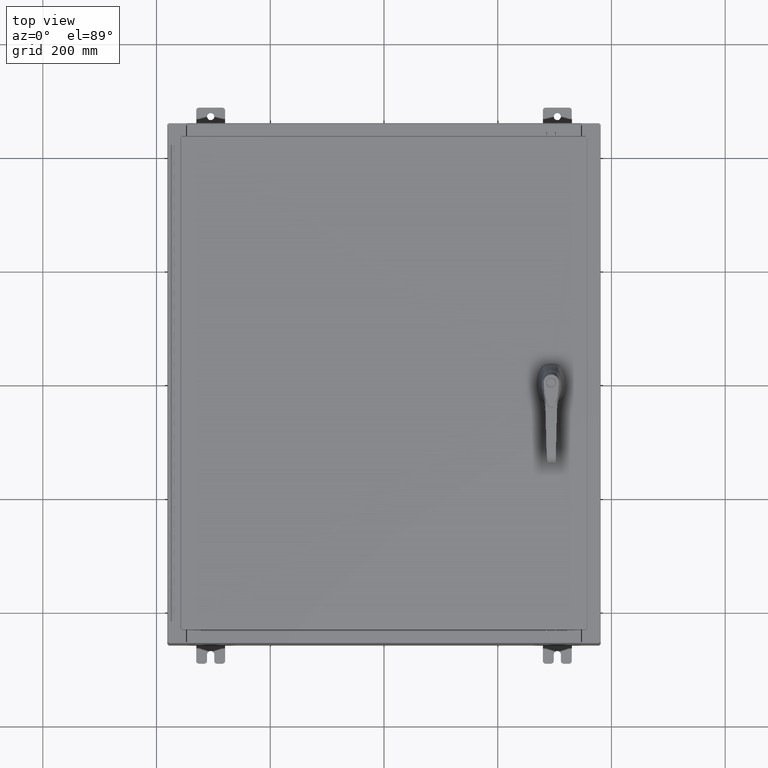
[diagram: clean part render]
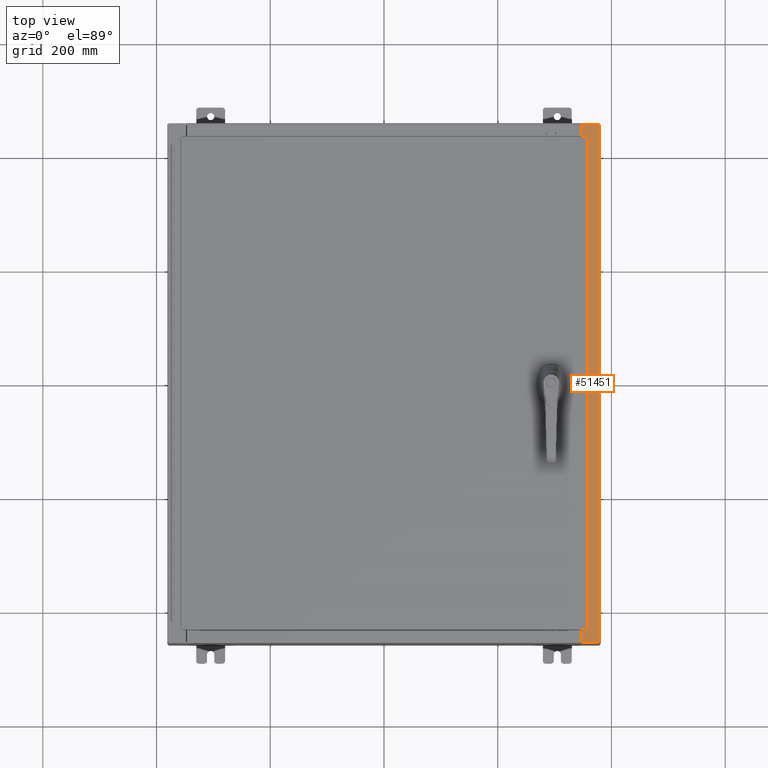
[diagram: same view with one face highlighted and labeled with its STEP entity id]
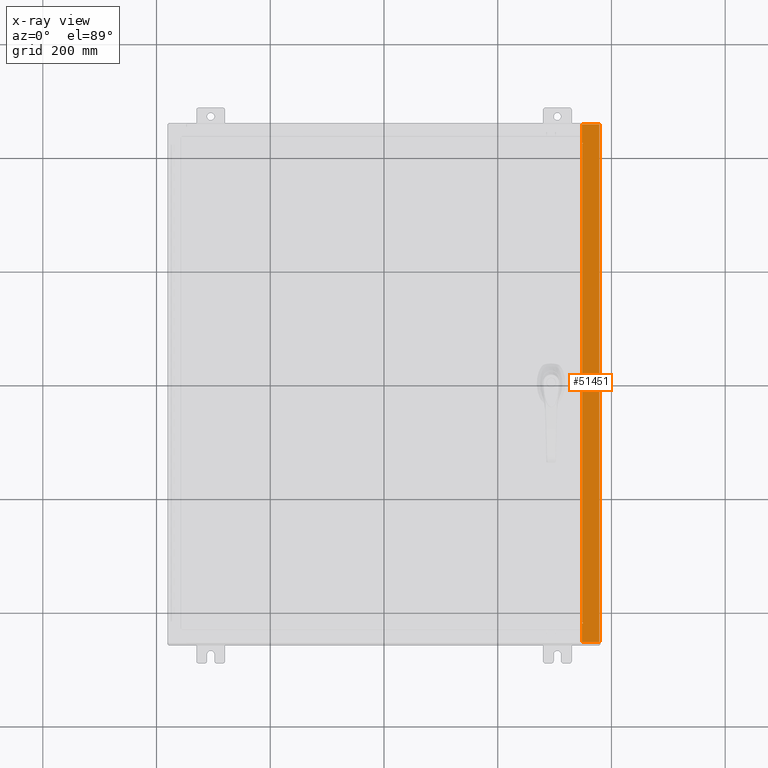
[diagram: x-ray of the same camera — body ghosted, the highlighted face saturated]
A machine part, top view. The second image highlights one B-rep face of the part: STEP entity #51451.
The next image is the same camera in x-ray: the body ghosted, the highlighted face saturated — about 0% of this face is hidden behind the body in this view.
In plain terms, the highlighted planar face has unit normal (-0, 0, -1).
Its self-contained STEP definition (entity closure, byte-faithful):
#71 = VECTOR ( 'NONE', #19425, 39.37007874015748100 ) ;
#534 = DIRECTION ( 'NONE',  ( 1.000000000000000000, 0.0000000000000000000, 0.0000000000000000000 ) ) ;
#1762 = VECTOR ( 'NONE', #88308, 39.37007874015748100 ) ;
#2120 = CARTESIAN_POINT ( 'NONE',  ( 13.75005000000003500, 16.63110000000000000, 9.925300000000008900 ) ) ;
#3115 = LINE ( 'NONE', #47714, #56486 ) ;
#3345 = CARTESIAN_POINT ( 'NONE',  ( 14.91230000000003400, 17.92530000000000000, 9.925300000000001800 ) ) ;
#5709 = CARTESIAN_POINT ( 'NONE',  ( 13.75005000000003500, -16.61242500000000200, 9.925300000000008900 ) ) ;
#8964 = VERTEX_POINT ( 'NONE', #66233 ) ;
#14478 = DIRECTION ( 'NONE',  ( -1.000000000000000000, 0.0000000000000000000, 5.349571789159788500E-015 ) ) ;
#14575 = VERTEX_POINT ( 'NONE', #53370 ) ;
#14706 = VECTOR ( 'NONE', #38334, 39.37007874015748100 ) ;
#15214 = DIRECTION ( 'NONE',  ( 1.000000000000000000, 0.0000000000000000000, 0.0000000000000000000 ) ) ;
#15868 = AXIS2_PLACEMENT_3D ( 'NONE', #70858, #71266, #14478 ) ;
#16592 = EDGE_CURVE ( 'NONE', #93343, #89786, #22234, .T. ) ;
#17628 = CARTESIAN_POINT ( 'NONE',  ( 13.71270000000003700, -16.59375000000000000, 9.925300000000008900 ) ) ;
#17651 = LINE ( 'NONE', #85179, #14706 ) ;
#18684 = ORIENTED_EDGE ( 'NONE', *, *, #115572, .F. ) ;
#19384 = AXIS2_PLACEMENT_3D ( 'NONE', #96211, #39438, #105814 ) ;
#19425 = DIRECTION ( 'NONE',  ( -1.000000000000000000, 4.861730685829018000E-063, 5.349571789159789300E-015 ) ) ;
#20162 = DIRECTION ( 'NONE',  ( -1.000000000000000000, 0.0000000000000000000, 0.0000000000000000000 ) ) ;
#20904 = CARTESIAN_POINT ( 'NONE',  ( 13.75005000000003500, -16.59375000000000000, 9.925300000000008900 ) ) ;
#21525 = VECTOR ( 'NONE', #97980, 39.37007874015748100 ) ;
#22234 = LINE ( 'NONE', #85721, #71 ) ;
#22491 = CARTESIAN_POINT ( 'NONE',  ( 5.335691853495967900E-014, -17.92530000000000000, 9.925300000000083500 ) ) ;
#24685 = CARTESIAN_POINT ( 'NONE',  ( 13.75005000000003500, -16.63110000000000000, 9.925300000000008900 ) ) ;
#28910 = VERTEX_POINT ( 'NONE', #2120 ) ;
#29268 = CARTESIAN_POINT ( 'NONE',  ( 13.75005000000003500, 16.63110000000000000, 9.925300000000008900 ) ) ;
#29582 = CARTESIAN_POINT ( 'NONE',  ( 13.69970000000003400, -16.63110000000000000, 9.925300000000008900 ) ) ;
#29597 = VERTEX_POINT ( 'NONE', #88297 ) ;
#29920 = EDGE_CURVE ( 'NONE', #48731, #38809, #36742, .T. ) ;
#33626 = ORIENTED_EDGE ( 'NONE', *, *, #115285, .T. ) ;
#33769 = VECTOR ( 'NONE', #48403, 39.37007874015748100 ) ;
#33856 = VERTEX_POINT ( 'NONE', #24685 ) ;
#34418 = VECTOR ( 'NONE', #88857, 39.37007874015748100 ) ;
#34980 = EDGE_CURVE ( 'NONE', #14575, #29597, #102574, .T. ) ;
#36742 = LINE ( 'NONE', #38890, #33769 ) ;
#38334 = DIRECTION ( 'NONE',  ( -4.276128853718621600E-031, -1.000000000000000000, 2.287545828266532300E-045 ) ) ;
#38809 = VERTEX_POINT ( 'NONE', #66804 ) ;
#38890 = CARTESIAN_POINT ( 'NONE',  ( 13.69970000000003400, -5.858168245728892200E-030, 9.925300000000008900 ) ) ;
#39438 = DIRECTION ( 'NONE',  ( 5.349571789159788500E-015, 0.0000000000000000000, 1.000000000000000000 ) ) ;
#41224 = CARTESIAN_POINT ( 'NONE',  ( 13.75005000000003500, -16.59375000000000000, 9.925300000000008900 ) ) ;
#44140 = CARTESIAN_POINT ( 'NONE',  ( 13.69970000000003400, 16.63110000000000000, 9.925300000000008900 ) ) ;
#45956 = LINE ( 'NONE', #29268, #96382 ) ;
#47005 = VERTEX_POINT ( 'NONE', #96497 ) ;
#47258 = LINE ( 'NONE', #72255, #94718 ) ;
#47714 = CARTESIAN_POINT ( 'NONE',  ( 13.69970000000003400, -16.63110000000000000, 9.925300000000008900 ) ) ;
#48403 = DIRECTION ( 'NONE',  ( -4.276128853718621600E-031, -1.000000000000000000, 2.287545828266532300E-045 ) ) ;
#48731 = VERTEX_POINT ( 'NONE', #29582 ) ;
#51451 = ADVANCED_FACE ( 'NONE', ( #98690 ), #89914, .F. ) ;
#53263 = AXIS2_PLACEMENT_3D ( 'NONE', #5709, #72013, #15214 ) ;
#53370 = CARTESIAN_POINT ( 'NONE',  ( 13.71270000000003700, -16.59375000000000000, 9.925300000000008900 ) ) ;
#55313 = CIRCLE ( 'NONE', #19384, 0.01867499999999949400 ) ;
#56486 = VECTOR ( 'NONE', #534, 39.37007874015748100 ) ;
#56600 = CIRCLE ( 'NONE', #53263, 0.01867499999999949400 ) ;
#58810 = ORIENTED_EDGE ( 'NONE', *, *, #29920, .T. ) ;
#63144 = CARTESIAN_POINT ( 'NONE',  ( 14.91230000000003400, -17.92530000000000000, 9.925300000000001800 ) ) ;
#66093 = EDGE_CURVE ( 'NONE', #38809, #8964, #84872, .T. ) ;
#66233 = CARTESIAN_POINT ( 'NONE',  ( 14.91230000000003400, -17.92530000000000000, 9.925300000000001800 ) ) ;
#66804 = CARTESIAN_POINT ( 'NONE',  ( 13.69970000000003400, -17.92530000000000000, 9.925300000000008900 ) ) ;
#66991 = EDGE_CURVE ( 'NONE', #33856, #118472, #56600, .T. ) ;
#67766 = EDGE_CURVE ( 'NONE', #93343, #8964, #109976, .T. ) ;
#68026 = EDGE_CURVE ( 'NONE', #48731, #33856, #3115, .T. ) ;
#70858 = CARTESIAN_POINT ( 'NONE',  ( 5.335691853495967900E-014, 0.0000000000000000000, 9.925300000000083500 ) ) ;
#70976 = ORIENTED_EDGE ( 'NONE', *, *, #67766, .F. ) ;
#71266 = DIRECTION ( 'NONE',  ( -5.349571789159788500E-015, 0.0000000000000000000, -1.000000000000000000 ) ) ;
#72013 = DIRECTION ( 'NONE',  ( 5.349571789159788500E-015, 0.0000000000000000000, 1.000000000000000000 ) ) ;
#72255 = CARTESIAN_POINT ( 'NONE',  ( 13.71270000000003700, 16.59375000000000000, 9.925300000000008900 ) ) ;
#72594 = ORIENTED_EDGE ( 'NONE', *, *, #96687, .F. ) ;
#72652 = DIRECTION ( 'NONE',  ( 1.000000000000000000, 0.0000000000000000000, 0.0000000000000000000 ) ) ;
#74378 = CARTESIAN_POINT ( 'NONE',  ( 13.69970000000003400, 17.92530000000000000, 9.925300000000008900 ) ) ;
#83047 = EDGE_CURVE ( 'NONE', #118472, #14575, #94199, .T. ) ;
#84650 = VECTOR ( 'NONE', #120041, 39.37007874015748100 ) ;
#84872 = LINE ( 'NONE', #22491, #34418 ) ;
#85179 = CARTESIAN_POINT ( 'NONE',  ( 13.69970000000003400, -5.858168245728892200E-030, 9.925300000000008900 ) ) ;
#85721 = CARTESIAN_POINT ( 'NONE',  ( 5.335691853495967900E-014, 17.92530000000000000, 9.925300000000083500 ) ) ;
#86062 = ORIENTED_EDGE ( 'NONE', *, *, #66991, .F. ) ;
#88268 = ORIENTED_EDGE ( 'NONE', *, *, #34980, .F. ) ;
#88297 = CARTESIAN_POINT ( 'NONE',  ( 13.71270000000003700, 16.59375000000000000, 9.925300000000008900 ) ) ;
#88308 = DIRECTION ( 'NONE',  ( -0.0000000000000000000, 1.000000000000000000, -0.0000000000000000000 ) ) ;
#88857 = DIRECTION ( 'NONE',  ( 1.000000000000000000, 1.087045829762337300E-031, -5.349571789159789300E-015 ) ) ;
#89786 = VERTEX_POINT ( 'NONE', #74378 ) ;
#89914 = PLANE ( 'NONE',  #15868 ) ;
#91969 = EDGE_CURVE ( 'NONE', #47005, #28910, #55313, .T. ) ;
#93343 = VERTEX_POINT ( 'NONE', #3345 ) ;
#94199 = LINE ( 'NONE', #41224, #21525 ) ;
#94718 = VECTOR ( 'NONE', #72652, 39.37007874015748100 ) ;
#96211 = CARTESIAN_POINT ( 'NONE',  ( 13.75005000000003500, 16.61242500000000200, 9.925300000000008900 ) ) ;
#96382 = VECTOR ( 'NONE', #20162, 39.37007874015748100 ) ;
#96497 = CARTESIAN_POINT ( 'NONE',  ( 13.75005000000003500, 16.59375000000000000, 9.925300000000008900 ) ) ;
#96614 = ORIENTED_EDGE ( 'NONE', *, *, #16592, .T. ) ;
#96687 = EDGE_CURVE ( 'NONE', #28910, #102007, #45956, .T. ) ;
#97980 = DIRECTION ( 'NONE',  ( -1.000000000000000000, 0.0000000000000000000, 0.0000000000000000000 ) ) ;
#98690 = FACE_OUTER_BOUND ( 'NONE', #99888, .T. ) ;
#99888 = EDGE_LOOP ( 'NONE', ( #120465, #58810, #122633, #70976, #96614, #33626, #72594, #112580, #18684, #88268, #111237, #86062 ) ) ;
#102007 = VERTEX_POINT ( 'NONE', #44140 ) ;
#102574 = LINE ( 'NONE', #17628, #1762 ) ;
#105814 = DIRECTION ( 'NONE',  ( 1.000000000000000000, 0.0000000000000000000, 0.0000000000000000000 ) ) ;
#109976 = LINE ( 'NONE', #63144, #84650 ) ;
#111237 = ORIENTED_EDGE ( 'NONE', *, *, #83047, .F. ) ;
#112580 = ORIENTED_EDGE ( 'NONE', *, *, #91969, .F. ) ;
#115285 = EDGE_CURVE ( 'NONE', #89786, #102007, #17651, .T. ) ;
#115572 = EDGE_CURVE ( 'NONE', #29597, #47005, #47258, .T. ) ;
#118472 = VERTEX_POINT ( 'NONE', #20904 ) ;
#120041 = DIRECTION ( 'NONE',  ( -0.0000000000000000000, -1.000000000000000000, -0.0000000000000000000 ) ) ;
#120465 = ORIENTED_EDGE ( 'NONE', *, *, #68026, .F. ) ;
#122633 = ORIENTED_EDGE ( 'NONE', *, *, #66093, .T. ) ;